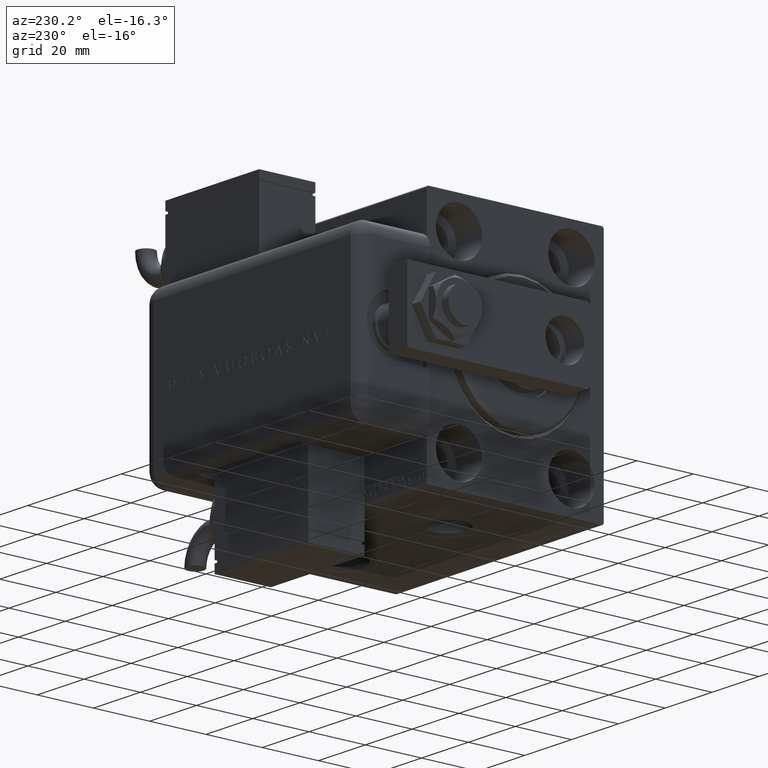
[diagram: clean part render]
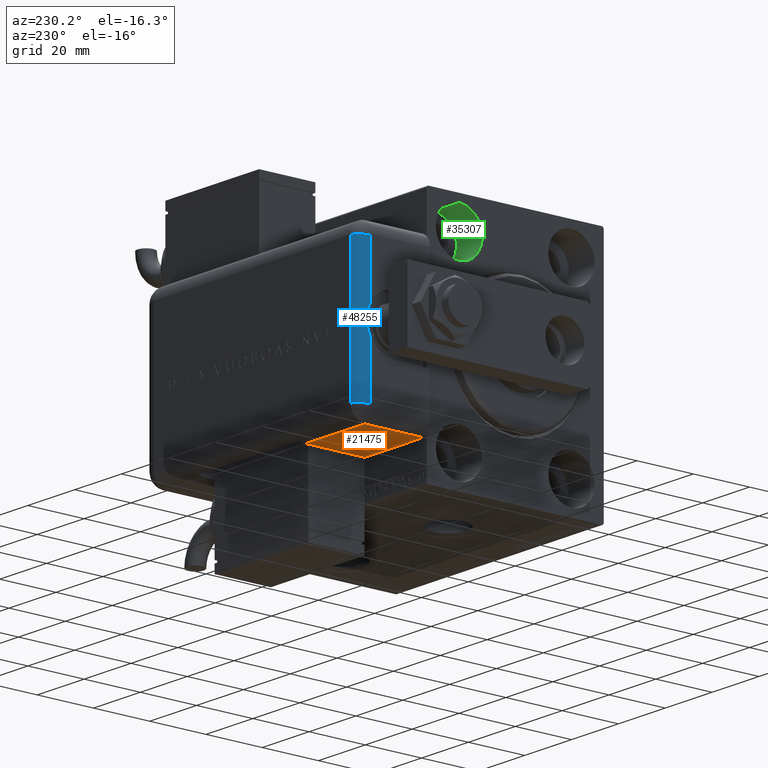
[diagram: same view with three faces highlighted in distinct colors, each labeled with its STEP entity id]
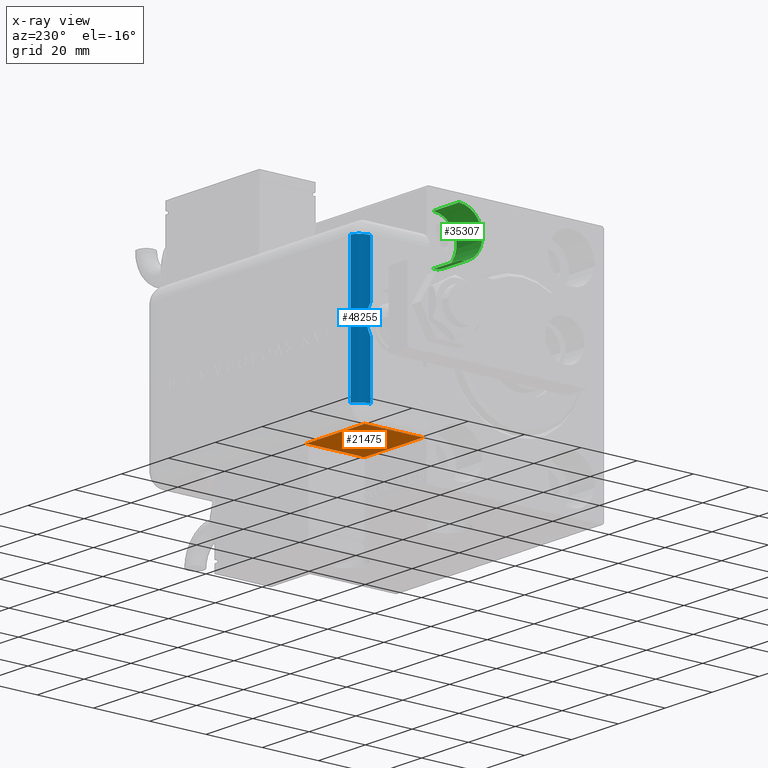
[diagram: x-ray of the same camera — body ghosted, the three highlighted faces saturated]
A machine part, auxiliary view with three faces highlighted in distinct colors.
The next image is the same camera in x-ray (body ghosted, the three faces saturated) — at least one of them is partly hidden behind the body in this view.
Their STEP definitions:

[orange] entity #21475 — the highlighted planar face has unit normal (0, 0, 1).
#118 = DIRECTION ( 'NONE',  ( -0.000000000000000000, 0.000000000000000000, -1.000000000000000000 ) ) ;
#6087 = EDGE_CURVE ( 'NONE', #55054, #59303, #51127, .T. ) ;
#9771 = ORIENTED_EDGE ( 'NONE', *, *, #13468, .F. ) ;
#13468 = EDGE_CURVE ( 'NONE', #50184, #33565, #33067, .T. ) ;
#13510 = CARTESIAN_POINT ( 'NONE',  ( -28.99999999999999645, 20.79999999999998295, 89.00000000000000000 ) ) ;
#17131 = CARTESIAN_POINT ( 'NONE',  ( -28.99999999999999645, -9.421223957302265857E-15, 64.00000000000000000 ) ) ;
#18016 = PLANE ( 'NONE',  #59874 ) ;
#19327 = EDGE_CURVE ( 'NONE', #59303, #50184, #47219, .T. ) ;
#21475 = ADVANCED_FACE ( 'NONE', ( #28187 ), #18016, .F. ) ;
#22736 = CARTESIAN_POINT ( 'NONE',  ( -28.99999999999999645, 20.79999999999998295, 64.00000000000000000 ) ) ;
#23559 = DIRECTION ( 'NONE',  ( 1.000000000000000000, 0.000000000000000000, -0.000000000000000000 ) ) ;
#28187 = FACE_OUTER_BOUND ( 'NONE', #28824, .T. ) ;
#28824 = EDGE_LOOP ( 'NONE', ( #51479, #9771, #56989, #54789 ) ) ;
#29045 = CARTESIAN_POINT ( 'NONE',  ( -28.99999999999999645, 22.99999999999998934, 64.00000000000000000 ) ) ;
#31688 = DIRECTION ( 'NONE',  ( 0.000000000000000000, -1.000000000000000000, 0.000000000000000000 ) ) ;
#31991 = CARTESIAN_POINT ( 'NONE',  ( -28.99999999999999645, 25.79999999999998295, 89.00000000000000000 ) ) ;
#32704 = DIRECTION ( 'NONE',  ( -0.000000000000000000, -0.000000000000000000, -1.000000000000000000 ) ) ;
#33067 = LINE ( 'NONE', #29045, #36041 ) ;
#33565 = VERTEX_POINT ( 'NONE', #22736 ) ;
#35624 = VECTOR ( 'NONE', #60036, 1000.000000000000000 ) ;
#36041 = VECTOR ( 'NONE', #37412, 1000.000000000000000 ) ;
#37412 = DIRECTION ( 'NONE',  ( -0.000000000000000000, 1.000000000000000000, -0.000000000000000000 ) ) ;
#39089 = VECTOR ( 'NONE', #32704, 1000.000000000000000 ) ;
#41459 = CARTESIAN_POINT ( 'NONE',  ( -28.99999999999999645, 25.79999999999998295, 89.00000000000000000 ) ) ;
#41995 = CARTESIAN_POINT ( 'NONE',  ( -28.99999999999999645, -9.421223957302265857E-15, 89.00000000000000000 ) ) ;
#44000 = VECTOR ( 'NONE', #31688, 1000.000000000000000 ) ;
#47219 = LINE ( 'NONE', #41995, #39089 ) ;
#49936 = EDGE_CURVE ( 'NONE', #55054, #33565, #54821, .T. ) ;
#50184 = VERTEX_POINT ( 'NONE', #17131 ) ;
#50687 = CARTESIAN_POINT ( 'NONE',  ( -28.99999999999999645, 20.79999999999998295, 89.00000000000000000 ) ) ;
#51127 = LINE ( 'NONE', #31991, #44000 ) ;
#51479 = ORIENTED_EDGE ( 'NONE', *, *, #49936, .T. ) ;
#54789 = ORIENTED_EDGE ( 'NONE', *, *, #6087, .F. ) ;
#54821 = LINE ( 'NONE', #13510, #35624 ) ;
#55054 = VERTEX_POINT ( 'NONE', #50687 ) ;
#56989 = ORIENTED_EDGE ( 'NONE', *, *, #19327, .F. ) ;
#59303 = VERTEX_POINT ( 'NONE', #60868 ) ;
#59874 = AXIS2_PLACEMENT_3D ( 'NONE', #41459, #23559, #118 ) ;
#60036 = DIRECTION ( 'NONE',  ( 0.000000000000000000, 0.000000000000000000, -1.000000000000000000 ) ) ;
#60868 = CARTESIAN_POINT ( 'NONE',  ( -28.99999999999999645, -9.421223957302265857E-15, 89.00000000000000000 ) ) ;

[blue] entity #48255 — the highlighted cylindrical surface (edge-blend (fillet) strip) has radius 5 mm, axis along (-0, -0, -1).
#2145 = EDGE_LOOP ( 'NONE', ( #11717, #28946, #47214, #25430, #58384, #41070 ) ) ;
#2308 = LINE ( 'NONE', #16503, #33420 ) ;
#2906 = CARTESIAN_POINT ( 'NONE',  ( 2.120548922004970471, 22.28188573776162684, 91.88661915599942631 ) ) ;
#3203 = VERTEX_POINT ( 'NONE', #22670 ) ;
#3417 = VECTOR ( 'NONE', #20908, 1000.000000000000000 ) ;
#3449 = FACE_OUTER_BOUND ( 'NONE', #2145, .T. ) ;
#6287 = CARTESIAN_POINT ( 'NONE',  ( -23.99999999999999645, 21.21742430504414045, 92.00000000000000000 ) ) ;
#6745 = VERTEX_POINT ( 'NONE', #31467 ) ;
#9005 = CARTESIAN_POINT ( 'NONE',  ( -4.899643580265686360, 21.21742430504414045, 92.00000000000000000 ) ) ;
#9311 = CARTESIAN_POINT ( 'NONE',  ( -0.8526831356307379428, 22.47282938210785375, 91.84016084808145308 ) ) ;
#10861 = CIRCLE ( 'NONE', #18744, 5.000000000000004441 ) ;
#11318 = VECTOR ( 'NONE', #52072, 1000.000000000000000 ) ;
#11717 = ORIENTED_EDGE ( 'NONE', *, *, #38469, .F. ) ;
#12115 = DIRECTION ( 'NONE',  ( 0.000000000000000000, 0.000000000000000000, 1.000000000000000000 ) ) ;
#13322 = CARTESIAN_POINT ( 'NONE',  ( 3.358724364638090432, 21.95764543947605674, 91.94980528326458113 ) ) ;
#13634 = CARTESIAN_POINT ( 'NONE',  ( 0.8473105964929726897, 22.47320809119042195, 91.84005614543823981 ) ) ;
#14401 = VERTEX_POINT ( 'NONE', #51740 ) ;
#15590 = CARTESIAN_POINT ( 'NONE',  ( 23.99999999999999289, 21.21742430504414045, 92.00000000000000000 ) ) ;
#16182 = VERTEX_POINT ( 'NONE', #6287 ) ;
#16503 = CARTESIAN_POINT ( 'NONE',  ( 23.99999999999999289, 25.79999999999998295, 89.00000000000000000 ) ) ;
#17138 = VERTEX_POINT ( 'NONE', #48852 ) ;
#17941 = CARTESIAN_POINT ( 'NONE',  ( -3.360120651465719810, 21.95684709623621345, 91.94990389003093867 ) ) ;
#18744 = AXIS2_PLACEMENT_3D ( 'NONE', #27443, #41053, #22829 ) ;
#20908 = DIRECTION ( 'NONE',  ( -1.000000000000000000, 0.000000000000000000, -0.000000000000000000 ) ) ;
#21427 = CARTESIAN_POINT ( 'NONE',  ( 1.695524554190644739, 22.36448231999430547, 91.86696972652192983 ) ) ;
#22670 = CARTESIAN_POINT ( 'NONE',  ( -23.99999999999999645, 25.79999999999998295, 89.00000000000000000 ) ) ;
#22829 = DIRECTION ( 'NONE',  ( 0.000000000000000000, 0.000000000000000000, -1.000000000000000000 ) ) ;
#22867 = CARTESIAN_POINT ( 'NONE',  ( -1.704474330344695199, 22.36301991028238589, 91.86732058242282051 ) ) ;
#25430 = ORIENTED_EDGE ( 'NONE', *, *, #40935, .T. ) ;
#26286 = DIRECTION ( 'NONE',  ( -1.000000000000000000, 0.000000000000000000, 0.000000000000000000 ) ) ;
#26862 = EDGE_CURVE ( 'NONE', #17138, #40814, #10861, .T. ) ;
#27443 = CARTESIAN_POINT ( 'NONE',  ( 23.99999999999999289, 21.21742430504414401, 87.00000000000000000 ) ) ;
#28946 = ORIENTED_EDGE ( 'NONE', *, *, #39915, .F. ) ;
#31467 = CARTESIAN_POINT ( 'NONE',  ( -4.899643580265686360, 21.21742430504414045, 92.00000000000000000 ) ) ;
#32333 = CARTESIAN_POINT ( 'NONE',  ( -23.99999999999999289, 21.21742430504414045, 92.00000000000000000 ) ) ;
#32481 = B_SPLINE_CURVE_WITH_KNOTS ( 'NONE', 3,
 ( #51542, #37067, #13322, #2906, #21427, #13634, #46627, #40240, #9311, #22867, #60165, #17941, #51238, #9005 ),
 .UNSPECIFIED., .F., .F.,
 ( 4, 2, 2, 2, 2, 2, 4 ),
 ( 0.000000000000000000, 0.002552242785223138820, 0.003828364177834708230, 0.005104485570446277640, 0.006380606963057847483, 0.007656728355669416460, 0.01020897114089255528 ),
 .UNSPECIFIED. ) ;
#33420 = VECTOR ( 'NONE', #55544, 1000.000000000000000 ) ;
#35392 = LINE ( 'NONE', #54198, #3417 ) ;
#35925 = DIRECTION ( 'NONE',  ( 1.000000000000000000, 0.000000000000000000, 0.000000000000000000 ) ) ;
#36382 = AXIS2_PLACEMENT_3D ( 'NONE', #49816, #35925, #55950 ) ;
#37067 = CARTESIAN_POINT ( 'NONE',  ( 4.147246859832670829, 21.64031018049891841, 92.00000000000001421 ) ) ;
#38469 = EDGE_CURVE ( 'NONE', #14401, #6745, #32481, .T. ) ;
#39915 = EDGE_CURVE ( 'NONE', #40814, #14401, #35392, .T. ) ;
#40240 = CARTESIAN_POINT ( 'NONE',  ( -0.4272404019587370816, 22.49990410585946421, 91.83272651514845109 ) ) ;
#40365 = EDGE_CURVE ( 'NONE', #3203, #16182, #43310, .T. ) ;
#40814 = VERTEX_POINT ( 'NONE', #15590 ) ;
#40935 = EDGE_CURVE ( 'NONE', #17138, #3203, #2308, .T. ) ;
#41053 = DIRECTION ( 'NONE',  ( 1.000000000000000000, 0.000000000000000000, -0.000000000000000000 ) ) ;
#41070 = ORIENTED_EDGE ( 'NONE', *, *, #58113, .F. ) ;
#41095 = CYLINDRICAL_SURFACE ( 'NONE', #47358, 5.000000000000004441 ) ;
#43310 = CIRCLE ( 'NONE', #36382, 5.000000000000004441 ) ;
#46627 = CARTESIAN_POINT ( 'NONE',  ( 0.4227564763960088845, 22.50009467200081303, 91.83267593983390498 ) ) ;
#47214 = ORIENTED_EDGE ( 'NONE', *, *, #26862, .F. ) ;
#47358 = AXIS2_PLACEMENT_3D ( 'NONE', #49123, #26286, #12115 ) ;
#48255 = ADVANCED_FACE ( 'NONE', ( #3449 ), #41095, .T. ) ;
#48852 = CARTESIAN_POINT ( 'NONE',  ( 23.99999999999999289, 25.79999999999998295, 89.00000000000000000 ) ) ;
#49123 = CARTESIAN_POINT ( 'NONE',  ( 23.99999999999999289, 21.21742430504414045, 87.00000000000000000 ) ) ;
#49816 = CARTESIAN_POINT ( 'NONE',  ( -23.99999999999999645, 21.21742430504414401, 87.00000000000000000 ) ) ;
#51238 = CARTESIAN_POINT ( 'NONE',  ( -4.147182090953424272, 21.64034658395930322, 91.99999999999998579 ) ) ;
#51542 = CARTESIAN_POINT ( 'NONE',  ( 4.899643580265684584, 21.21742430504414045, 92.00000000000000000 ) ) ;
#51740 = CARTESIAN_POINT ( 'NONE',  ( 4.899643580265684584, 21.21742430504414045, 92.00000000000000000 ) ) ;
#52072 = DIRECTION ( 'NONE',  ( -1.000000000000000000, 0.000000000000000000, -0.000000000000000000 ) ) ;
#54198 = CARTESIAN_POINT ( 'NONE',  ( -23.99999999999999289, 21.21742430504414045, 92.00000000000000000 ) ) ;
#55544 = DIRECTION ( 'NONE',  ( -1.000000000000000000, 0.000000000000000000, 0.000000000000000000 ) ) ;
#55950 = DIRECTION ( 'NONE',  ( 0.000000000000000000, 0.000000000000000000, -1.000000000000000000 ) ) ;
#56391 = LINE ( 'NONE', #32333, #11318 ) ;
#58113 = EDGE_CURVE ( 'NONE', #6745, #16182, #56391, .T. ) ;
#58384 = ORIENTED_EDGE ( 'NONE', *, *, #40365, .T. ) ;
#60165 = CARTESIAN_POINT ( 'NONE',  ( -2.126976179448856197, 22.28041711506194744, 91.88693359193878507 ) ) ;

[green] entity #35307 — the highlighted cylindrical surface (edge-blend (fillet) strip) has radius 8.25 mm, axis along (-1, -0, -0).
#682 = EDGE_CURVE ( 'NONE', #45944, #14776, #22757, .T. ) ;
#1612 = EDGE_CURVE ( 'NONE', #48557, #57466, #39994, .T. ) ;
#7329 = EDGE_CURVE ( 'NONE', #48557, #45944, #43901, .T. ) ;
#7437 = CARTESIAN_POINT ( 'NONE',  ( 11.00000000000000000, 20.00000000000000355, 31.50000000000000000 ) ) ;
#7727 = DIRECTION ( 'NONE',  ( 0.000000000000000000, 0.000000000000000000, 1.000000000000000000 ) ) ;
#14776 = VERTEX_POINT ( 'NONE', #27529 ) ;
#16989 = DIRECTION ( 'NONE',  ( -1.000000000000000000, 0.000000000000000000, 0.000000000000000000 ) ) ;
#18447 = DIRECTION ( 'NONE',  ( -1.000000000000000000, -0.000000000000000000, -0.000000000000000000 ) ) ;
#19683 = ORIENTED_EDGE ( 'NONE', *, *, #682, .F. ) ;
#20555 = CARTESIAN_POINT ( 'NONE',  ( 11.00000000000000000, 20.00000000000000355, 39.74999999999999289 ) ) ;
#21483 = CARTESIAN_POINT ( 'NONE',  ( 11.00000000000000000, 20.00000000000000355, 23.25000000000000355 ) ) ;
#21966 = ORIENTED_EDGE ( 'NONE', *, *, #1612, .T. ) ;
#22757 = LINE ( 'NONE', #52045, #29010 ) ;
#23387 = ORIENTED_EDGE ( 'NONE', *, *, #57381, .T. ) ;
#25599 = CARTESIAN_POINT ( 'NONE',  ( 0.000000000000000000, 20.00000000000000355, 31.50000000000000000 ) ) ;
#26907 = CYLINDRICAL_SURFACE ( 'NONE', #35666, 8.249999999999992895 ) ;
#27529 = CARTESIAN_POINT ( 'NONE',  ( 0.000000000000000000, 20.00000000000000355, 39.74999999999999289 ) ) ;
#29010 = VECTOR ( 'NONE', #18447, 1000.000000000000000 ) ;
#33643 = CARTESIAN_POINT ( 'NONE',  ( 11.00000000000000000, 20.00000000000000355, 23.25000000000000355 ) ) ;
#34941 = VECTOR ( 'NONE', #50150, 1000.000000000000000 ) ;
#35307 = ADVANCED_FACE ( 'NONE', ( #50973 ), #26907, .F. ) ;
#35666 = AXIS2_PLACEMENT_3D ( 'NONE', #59293, #45737, #46354 ) ;
#39499 = DIRECTION ( 'NONE',  ( -1.000000000000000000, 0.000000000000000000, 0.000000000000000000 ) ) ;
#39994 = LINE ( 'NONE', #21483, #34941 ) ;
#40948 = AXIS2_PLACEMENT_3D ( 'NONE', #7437, #16989, #59823 ) ;
#42257 = CARTESIAN_POINT ( 'NONE',  ( 0.000000000000000000, 20.00000000000000355, 23.25000000000000355 ) ) ;
#43901 = CIRCLE ( 'NONE', #40948, 8.249999999999992895 ) ;
#44203 = ORIENTED_EDGE ( 'NONE', *, *, #7329, .F. ) ;
#44787 = AXIS2_PLACEMENT_3D ( 'NONE', #25599, #39499, #7727 ) ;
#45737 = DIRECTION ( 'NONE',  ( -1.000000000000000000, -0.000000000000000000, -0.000000000000000000 ) ) ;
#45944 = VERTEX_POINT ( 'NONE', #20555 ) ;
#46354 = DIRECTION ( 'NONE',  ( 0.000000000000000000, 0.000000000000000000, 1.000000000000000000 ) ) ;
#46392 = EDGE_LOOP ( 'NONE', ( #44203, #21966, #23387, #19683 ) ) ;
#48557 = VERTEX_POINT ( 'NONE', #33643 ) ;
#48734 = CIRCLE ( 'NONE', #44787, 8.249999999999992895 ) ;
#50150 = DIRECTION ( 'NONE',  ( -1.000000000000000000, -0.000000000000000000, -0.000000000000000000 ) ) ;
#50973 = FACE_OUTER_BOUND ( 'NONE', #46392, .T. ) ;
#52045 = CARTESIAN_POINT ( 'NONE',  ( 11.00000000000000000, 20.00000000000000355, 39.74999999999999289 ) ) ;
#57381 = EDGE_CURVE ( 'NONE', #57466, #14776, #48734, .T. ) ;
#57466 = VERTEX_POINT ( 'NONE', #42257 ) ;
#59293 = CARTESIAN_POINT ( 'NONE',  ( 11.00000000000000000, 20.00000000000000355, 31.50000000000000000 ) ) ;
#59823 = DIRECTION ( 'NONE',  ( 0.000000000000000000, 0.000000000000000000, 1.000000000000000000 ) ) ;